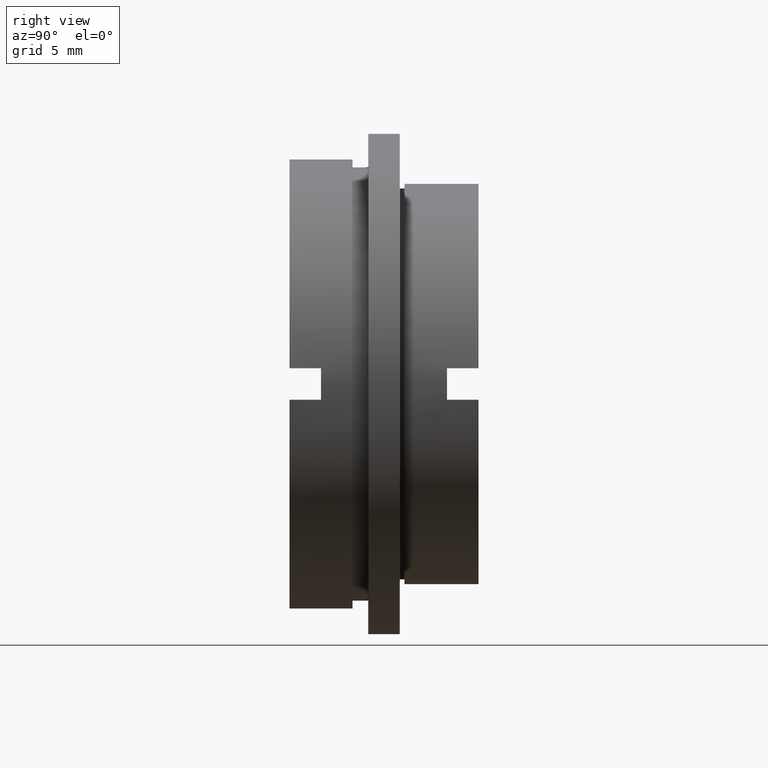
[diagram: clean part render]
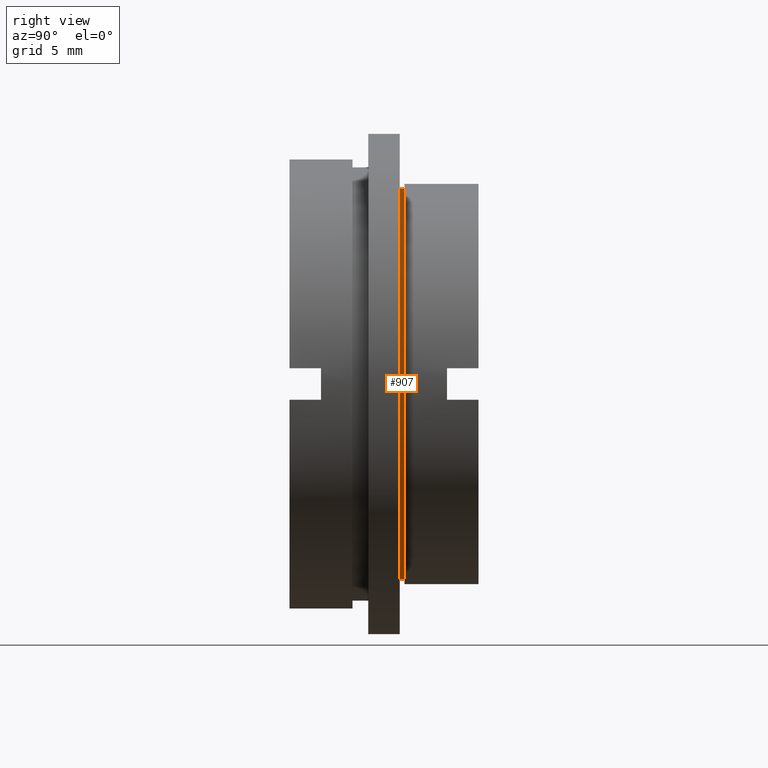
[diagram: same view with one face highlighted and labeled with its STEP entity id]
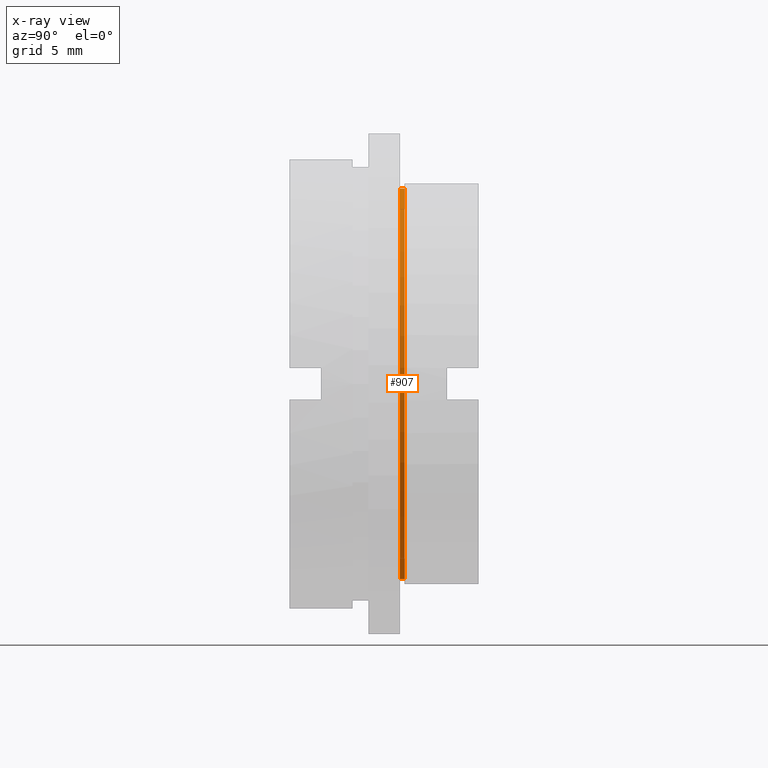
[diagram: x-ray of the same camera — body ghosted, the highlighted face saturated]
A machine part, right view. The second image highlights one B-rep face of the part: STEP entity #907.
The next image is the same camera in x-ray: the body ghosted, the highlighted face saturated — about 0% of this face is hidden behind the body in this view.
In plain terms, the highlighted cylindrical surface (partial cylindrical patch) has radius 12.4 mm, axis along (-0, 1, -0).
Its self-contained STEP definition (entity closure, byte-faithful):
#1 = DIRECTION ( 'NONE',  ( 0.0000000000000000000, 0.0000000000000000000, 1.000000000000000000 ) ) ;
#13 = CARTESIAN_POINT ( 'NONE',  ( 0.0000000000000000000, 7.300000000000000700, 12.39999999999999900 ) ) ;
#14 = CARTESIAN_POINT ( 'NONE',  ( 1.518562030942717800E-015, 22.67749945107591400, -12.39999999999999900 ) ) ;
#59 = FACE_OUTER_BOUND ( 'NONE', #1085, .T. ) ;
#93 = LINE ( 'NONE', #14, #189 ) ;
#113 = CIRCLE ( 'NONE', #213, 12.39999999999999900 ) ;
#136 = VERTEX_POINT ( 'NONE', #343 ) ;
#189 = VECTOR ( 'NONE', #1156, 1000.000000000000000 ) ;
#197 = DIRECTION ( 'NONE',  ( 0.0000000000000000000, 0.0000000000000000000, 1.000000000000000000 ) ) ;
#213 = AXIS2_PLACEMENT_3D ( 'NONE', #1075, #1006, #1 ) ;
#246 = DIRECTION ( 'NONE',  ( -0.0000000000000000000, 1.000000000000000000, -0.0000000000000000000 ) ) ;
#259 = CARTESIAN_POINT ( 'NONE',  ( 0.0000000000000000000, 22.67749945107591400, 12.39999999999999900 ) ) ;
#329 = DIRECTION ( 'NONE',  ( 0.0000000000000000000, 0.0000000000000000000, 1.000000000000000000 ) ) ;
#340 = LINE ( 'NONE', #259, #1130 ) ;
#343 = CARTESIAN_POINT ( 'NONE',  ( 1.518562030942717800E-015, 6.999999999999999100, -12.39999999999999900 ) ) ;
#416 = EDGE_CURVE ( 'NONE', #1146, #1100, #814, .T. ) ;
#430 = ORIENTED_EDGE ( 'NONE', *, *, #1272, .F. ) ;
#525 = VERTEX_POINT ( 'NONE', #795 ) ;
#699 = ORIENTED_EDGE ( 'NONE', *, *, #925, .T. ) ;
#779 = CARTESIAN_POINT ( 'NONE',  ( 0.0000000000000000000, 7.300000000000000700, 0.0000000000000000000 ) ) ;
#795 = CARTESIAN_POINT ( 'NONE',  ( 0.0000000000000000000, 6.999999999999999100, 12.39999999999999900 ) ) ;
#814 = CIRCLE ( 'NONE', #1297, 12.39999999999999900 ) ;
#907 = ADVANCED_FACE ( 'NONE', ( #59 ), #1111, .T. ) ;
#925 = EDGE_CURVE ( 'NONE', #525, #136, #113, .T. ) ;
#1006 = DIRECTION ( 'NONE',  ( -0.0000000000000000000, 1.000000000000000000, -0.0000000000000000000 ) ) ;
#1011 = CARTESIAN_POINT ( 'NONE',  ( 0.0000000000000000000, 22.67749945107591400, 0.0000000000000000000 ) ) ;
#1026 = AXIS2_PLACEMENT_3D ( 'NONE', #1011, #1337, #197 ) ;
#1038 = CARTESIAN_POINT ( 'NONE',  ( 1.518562030942717800E-015, 7.300000000000000700, -12.39999999999999900 ) ) ;
#1044 = ORIENTED_EDGE ( 'NONE', *, *, #1143, .T. ) ;
#1075 = CARTESIAN_POINT ( 'NONE',  ( 0.0000000000000000000, 6.999999999999999100, 0.0000000000000000000 ) ) ;
#1085 = EDGE_LOOP ( 'NONE', ( #699, #1044, #1313, #430 ) ) ;
#1100 = VERTEX_POINT ( 'NONE', #1038 ) ;
#1111 = CYLINDRICAL_SURFACE ( 'NONE', #1026, 12.39999999999999900 ) ;
#1130 = VECTOR ( 'NONE', #246, 1000.000000000000000 ) ;
#1143 = EDGE_CURVE ( 'NONE', #136, #1100, #93, .T. ) ;
#1146 = VERTEX_POINT ( 'NONE', #13 ) ;
#1156 = DIRECTION ( 'NONE',  ( -0.0000000000000000000, 1.000000000000000000, -0.0000000000000000000 ) ) ;
#1182 = DIRECTION ( 'NONE',  ( -0.0000000000000000000, 1.000000000000000000, -0.0000000000000000000 ) ) ;
#1272 = EDGE_CURVE ( 'NONE', #525, #1146, #340, .T. ) ;
#1297 = AXIS2_PLACEMENT_3D ( 'NONE', #779, #1182, #329 ) ;
#1313 = ORIENTED_EDGE ( 'NONE', *, *, #416, .F. ) ;
#1337 = DIRECTION ( 'NONE',  ( -0.0000000000000000000, 1.000000000000000000, -0.0000000000000000000 ) ) ;